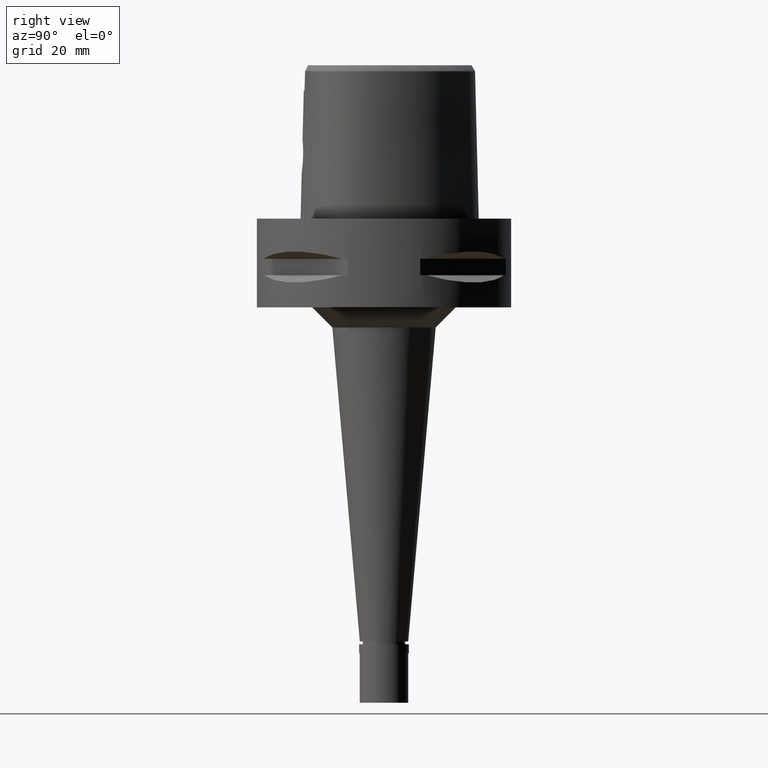
[diagram: clean part render]
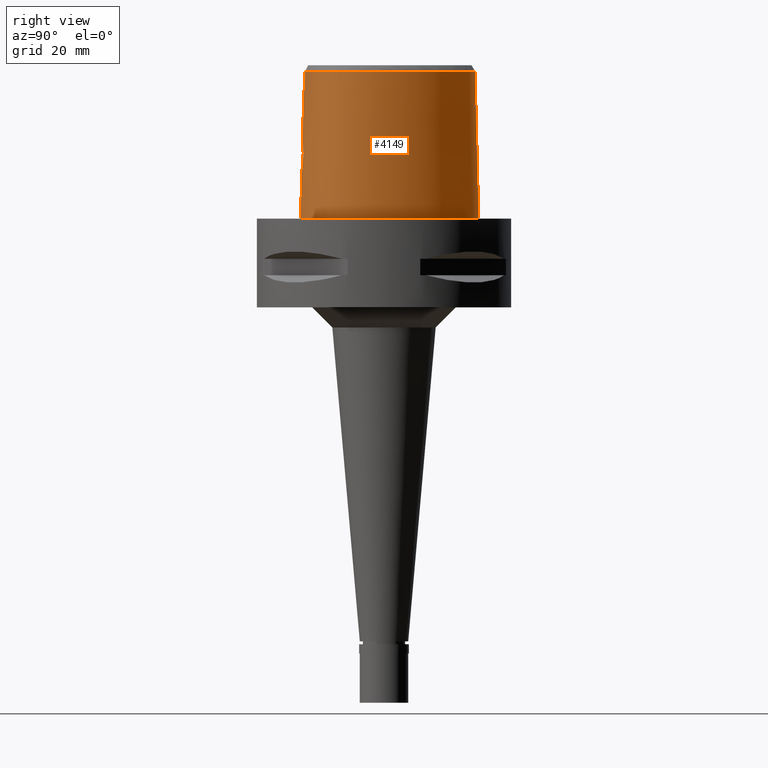
[diagram: same view with one face highlighted and labeled with its STEP entity id]
A machine part, right view. The second image highlights one B-rep face of the part: STEP entity #4149.
In plain terms, the highlighted face is a freeform B-spline surface patch.
Its self-contained STEP definition (entity closure, byte-faithful):
#12 = ORIENTED_EDGE ( 'NONE', *, *, #2161, .T. ) ;
#24 = CARTESIAN_POINT ( 'NONE',  ( 1.767192251246243018, -20.15197845540289734, 19.14519926632320690 ) ) ;
#47 = CARTESIAN_POINT ( 'NONE',  ( 2.758179676625399424, -20.25337897196573778, 12.53390918841465762 ) ) ;
#64 = ORIENTED_EDGE ( 'NONE', *, *, #3547, .F. ) ;
#71 = CARTESIAN_POINT ( 'NONE',  ( 1.836480365928000014, -19.76356488852000126, 37.25233258320000118 ) ) ;
#74 = CARTESIAN_POINT ( 'NONE',  ( 3.745459306425825474, -20.04797394566474011, 17.04080371184646836 ) ) ;
#96 = CARTESIAN_POINT ( 'NONE',  ( 1.583085234472323410, -20.15857747892415830, 19.22794739783360285 ) ) ;
#114 = CARTESIAN_POINT ( 'NONE',  ( 3.736696120837999402, -19.67778323291999953, 31.80000004972999861 ) ) ;
#119 = CARTESIAN_POINT ( 'NONE',  ( 2.772326413959959268, -20.10389738242821878, 18.45539022241195326 ) ) ;
#142 = ORIENTED_EDGE ( 'NONE', *, *, #475, .F. ) ;
#160 = CARTESIAN_POINT ( 'NONE',  ( 6.175998538949999173, -19.37631759675999987, 37.25233258320000118 ) ) ;
#165 = B_SPLINE_CURVE_WITH_KNOTS ( 'NONE', 3,
 ( #1835, #4555, #4475, #346 ),
 .UNSPECIFIED., .F., .F.,
 ( 4, 4 ),
 ( 0.0000000000000000000, 1.000000000000000000 ),
 .UNSPECIFIED. ) ;
#177 = CARTESIAN_POINT ( 'NONE',  ( 3.736696120837999402, -19.67778323291999953, 31.80000004972999861 ) ) ;
#183 = CARTESIAN_POINT ( 'NONE',  ( 14.36818021245999866, -16.67825708957000330, 24.59140909087000182 ) ) ;
#204 = CARTESIAN_POINT ( 'NONE',  ( 16.57726024685999633, -15.19304450070000101, 24.59140909087000182 ) ) ;
#225 = CARTESIAN_POINT ( 'NONE',  ( 19.40779762316999779, -12.64961922684999962, 11.93048559854000068 ) ) ;
#246 = CARTESIAN_POINT ( 'NONE',  ( 21.31039797601999908, -4.105938499110999729, 37.25233258320000118 ) ) ;
#271 = CARTESIAN_POINT ( 'NONE',  ( -1.012745931301000022E-12, -20.38876923348000147, 11.44999999999999929 ) ) ;
#273 = CARTESIAN_POINT ( 'NONE',  ( 10.55288400386000092, 18.94467580982000143, 11.93048559854000068 ) ) ;
#292 = CARTESIAN_POINT ( 'NONE',  ( -1.709898365991000259E-11, 22.56201468012000078, 36.52186680743999858 ) ) ;
#301 = CARTESIAN_POINT ( 'NONE',  ( 20.65947723820000093, -8.729764279915000813, 37.25233258320000118 ) ) ;
#320 = CARTESIAN_POINT ( 'NONE',  ( 21.99640702124999692, -0.2778990152892999999, -0.7304378937883000411 ) ) ;
#322 = ORIENTED_EDGE ( 'NONE', *, *, #4743, .T. ) ;
#346 = CARTESIAN_POINT ( 'NONE',  ( 2.041043315709000034E-08, -19.88004246002000031, 31.80000004972000127 ) ) ;
#349 = CARTESIAN_POINT ( 'NONE',  ( -0.7217521650948000023, 23.47150799231000207, -0.7304378937882000100 ) ) ;
#366 = CARTESIAN_POINT ( 'NONE',  ( 3.265869583376045604, -20.07528142228614954, 17.89964299958288763 ) ) ;
#381 = CARTESIAN_POINT ( 'NONE',  ( 4.706482814907000387E-11, 23.47499999999000053, 4.962696920073999769E-14 ) ) ;
#392 = CARTESIAN_POINT ( 'NONE',  ( 3.714384130523664229, -20.13065104887488488, 13.88538127571087344 ) ) ;
#393 = CARTESIAN_POINT ( 'NONE',  ( 10.91891095220961461, -18.03046396092870296, 36.52186680739934843 ) ) ;
#417 = CARTESIAN_POINT ( 'NONE',  ( 2.144427845703853031, -20.13626349860853892, 18.93810770243077357 ) ) ;
#421 = CARTESIAN_POINT ( 'NONE',  ( 14.40795643310065977, 15.64093753675004095, -2.265534882145512491E-06 ) ) ;
#439 = CARTESIAN_POINT ( 'NONE',  ( 11.23887130436999904, -18.91049776519999881, -0.7304378937883000411 ) ) ;
#442 = CARTESIAN_POINT ( 'NONE',  ( 1.856701250891908517, -20.14848423775754327, 19.09993988373629747 ) ) ;
#472 = CARTESIAN_POINT ( 'NONE',  ( 2.673904828756372254, -20.10928166633829051, 18.54472627324921064 ) ) ;
#475 = EDGE_CURVE ( 'NONE', #875, #2772, #692, .T. ) ;
#558 = CARTESIAN_POINT ( 'NONE',  ( 16.77374378063999671, -15.44292466803999808, 11.93048559854000068 ) ) ;
#564 = EDGE_CURVE ( 'NONE', #875, #1372, #165, .T. ) ;
#578 = CARTESIAN_POINT ( 'NONE',  ( 18.12052890019999651, -13.74516014105999950, 24.59140909087000182 ) ) ;
#579 = VERTEX_POINT ( 'NONE', #3037 ) ;
#584 = EDGE_CURVE ( 'NONE', #3042, #2666, #1082, .T. ) ;
#637 = B_SPLINE_CURVE_WITH_KNOTS ( 'NONE', 3,
 ( #292, #2903, #3731, #4062, #4882, #1447, #3680, #2978, #4862, #3636, #999, #2505, #1736, #1775, #1907, #3031, #2600, #2276, #1073, #393, #3760, #4932, #1553 ),
 .UNSPECIFIED., .F., .F.,
 ( 4, 1, 1, 1, 1, 1, 1, 1, 1, 1, 1, 1, 1, 1, 1, 1, 1, 1, 1, 1, 4 ),
 ( 0.0000000000000000000, 0.04382683003322158932, 0.08765366006602230697, 0.1314804900989283709, 0.1753073201318344210, 0.2629609801974359673, 0.3506146402631428738, 0.4382683003289548629, 0.5259219603945565202, 0.5697487904274624038, 0.6135756204602632602, 0.6574024504931693658, 0.6793158655095696830, 0.7012292805259701112, 0.7231426955423705394, 0.7450561105587708566, 0.7888829405916769621, 0.8327097706245829567, 0.8765366006573837021, 0.9641902607230801170, 1.000000000000000000 ),
 .UNSPECIFIED. ) ;
#639 = B_SPLINE_SURFACE_WITH_KNOTS ( 'NONE', 3, 3, ( 
 ( #2495, #2451, #3297, #4818 ),
 ( #944, #2140, #2541, #2912 ),
 ( #3604, #2478, #1009, #71 ),
 ( #1604, #1365, #4045, #160 ),
 ( #439, #4399, #4021, #2095 ),
 ( #3134, #4662, #183, #984 ),
 ( #2849, #558, #204, #1971 ),
 ( #1227, #1697, #578, #1719 ),
 ( #2116, #225, #3514, #1319 ),
 ( #3249, #3645, #4773, #1345 ),
 ( #1745, #3276, #4795, #2890 ),
 ( #1861, #3742, #4580, #301 ),
 ( #1411, #4146, #3011, #1807 ),
 ( #2209, #1136, #3715, #246 ),
 ( #320, #3398, #1483, #3374 ),
 ( #4846, #3691, #1085, #2940 ),
 ( #3419, #1112, #2964, #4168 ),
 ( #3767, #2986, #4945, #707 ),
 ( #1838, #273, #2235, #4916 ),
 ( #4558, #2634, #2163, #3350 ),
 ( #731, #4891, #2563, #4478 ),
 ( #2258, #4504, #3790, #1456 ),
 ( #4527, #1060, #1512, #4871 ),
 ( #1784, #3320, #3040, #1035 ),
 ( #349, #4096, #2610, #654 ) ),
 .UNSPECIFIED., .F., .F., .F.,
 ( 4, 1, 1, 1, 1, 1, 1, 1, 1, 1, 1, 1, 1, 1, 1, 1, 1, 1, 1, 1, 1, 1, 4 ),
 ( 4, 4 ),
 ( -0.008985960173583999039, 0.0000000000000000000, 0.08333333333341000349, 0.1666666666667000196, 0.2083333333333000081, 0.2500000000000000000, 0.2916666666666999919, 0.3125000000000000000, 0.3333333333333000081, 0.3541666666666000163, 0.3749999999998999689, 0.4166666666666000163, 0.4583333333332000326, 0.4999999999998999689, 0.5833333333331000015, 0.6666666666664999852, 0.7499999999998000488, 0.8333333333329999704, 0.8749999999997000177, 0.9166666666664000651, 0.9583333333329999704, 1.000000000000000000, 1.011710456763000199 ),
 ( -4.436129508872000012E-09, 1.000000226243000112 ),
 .UNSPECIFIED. ) ;
#654 = CARTESIAN_POINT ( 'NONE',  ( -0.6642815130213999275, 22.52377613248999921, 37.25233258320000118 ) ) ;
#692 = B_SPLINE_CURVE_WITH_KNOTS ( 'NONE', 3,
 ( #114, #2809, #1999, #3131 ),
 .UNSPECIFIED., .F., .F.,
 ( 4, 4 ),
 ( 0.0000000000000000000, 1.000000000000000000 ),
 .UNSPECIFIED. ) ;
#707 = CARTESIAN_POINT ( 'NONE',  ( 13.69241952728000022, 15.03666369403000047, 37.25233258320000118 ) ) ;
#712 = B_SPLINE_CURVE_WITH_KNOTS ( 'NONE', 3,
 ( #4669, #1129, #4574, #1557, #3890, #2710, #781, #2310, #4649, #4297, #4937, #2654, #1911, #1587, #4247, #2734, #421, #861, #3523, #3413, #752, #4270, #808 ),
 .UNSPECIFIED., .F., .F.,
 ( 4, 1, 1, 1, 1, 1, 1, 1, 1, 1, 1, 1, 1, 1, 1, 1, 1, 1, 1, 1, 4 ),
 ( 0.0000000000000000000, 0.08333333333341000349, 0.1666666666667000196, 0.2083333333333000081, 0.2500000000000000000, 0.2916666666666999919, 0.3125000000000000000, 0.3333333333333000081, 0.3541666666666000163, 0.3749999999998999689, 0.4166666666666000163, 0.4583333333332000326, 0.4999999999998999689, 0.5833333333331000015, 0.6666666666664999852, 0.7499999999998000488, 0.8333333333329999704, 0.8749999999997000177, 0.9166666666664000651, 0.9583333333329999704, 1.000000000000000000 ),
 .UNSPECIFIED. ) ;
#723 = LINE ( 'NONE', #2249, #2865 ) ;
#731 = CARTESIAN_POINT ( 'NONE',  ( 5.105252918102999971, 22.54305024739000274, -0.7304378937882000100 ) ) ;
#746 = CARTESIAN_POINT ( 'NONE',  ( 4.050037399383524139, -20.04599349312466927, 15.75361975466950781 ) ) ;
#752 = CARTESIAN_POINT ( 'NONE',  ( 2.564517738598203866, 23.29328130577168210, -2.265534882145512491E-06 ) ) ;
#773 = CARTESIAN_POINT ( 'NONE',  ( 3.850246712570873253, -20.10780614032470481, 14.21172176769504603 ) ) ;
#781 = CARTESIAN_POINT ( 'NONE',  ( 18.56841069267878197, -14.16937992189347817, -2.265534976416891388E-06 ) ) ;
#784 = ORIENTED_EDGE ( 'NONE', *, *, #1029, .T. ) ;
#804 = CARTESIAN_POINT ( 'NONE',  ( 2.880386059682973343, -20.09771851976562829, 18.34709984349741418 ) ) ;
#808 = CARTESIAN_POINT ( 'NONE',  ( 4.706482814907000387E-11, 23.47499999999000053, 4.962696920073999769E-14 ) ) ;
#827 = CARTESIAN_POINT ( 'NONE',  ( 2.915545606160534930, -20.09570297646324377, 18.31119129212262209 ) ) ;
#855 = CARTESIAN_POINT ( 'NONE',  ( 3.559803832315476146, -20.05788146350431234, 17.44950363749580546 ) ) ;
#861 = CARTESIAN_POINT ( 'NONE',  ( 10.74572894720616922, 19.17433598110774895, -2.265534976416891388E-06 ) ) ;
#875 = VERTEX_POINT ( 'NONE', #177 ) ;
#885 = CARTESIAN_POINT ( 'NONE',  ( 0.0000000000000000000, -20.18628283968999781, 19.55000000000000071 ) ) ;
#944 = CARTESIAN_POINT ( 'NONE',  ( -0.4561077450384999898, -20.69106756156000060, -0.7304378937883000411 ) ) ;
#984 = CARTESIAN_POINT ( 'NONE',  ( 14.21104783177000108, -16.40237676687000246, 37.25233258320000118 ) ) ;
#999 = CARTESIAN_POINT ( 'NONE',  ( 21.32871516739689000, -4.105831245034515575, 36.52186680739934843 ) ) ;
#1009 = CARTESIAN_POINT ( 'NONE',  ( 1.853272111804000088, -20.08023965926000187, 24.59140909087000182 ) ) ;
#1027 = CARTESIAN_POINT ( 'NONE',  ( 1.222756221968838375, -20.36284569854003124, 11.63840396453747239 ) ) ;
#1029 = EDGE_CURVE ( 'NONE', #1116, #2772, #637, .T. ) ;
#1035 = CARTESIAN_POINT ( 'NONE',  ( -0.4431573285195999912, 22.53713843973000053, 37.25233258320000118 ) ) ;
#1060 = CARTESIAN_POINT ( 'NONE',  ( 0.5990981970859000638, 23.20165460204999874, 11.93048559854000068 ) ) ;
#1073 = CARTESIAN_POINT ( 'NONE',  ( 14.22011350746370439, -16.41829354687986964, 36.52186680739934843 ) ) ;
#1082 = LINE ( 'NONE', #271, #2053 ) ;
#1085 = CARTESIAN_POINT ( 'NONE',  ( 20.16779718007999733, 4.447573587376000503, 24.59140909087000182 ) ) ;
#1112 = CARTESIAN_POINT ( 'NONE',  ( 17.80867300997000058, 10.28184204457000028, 11.93048559854000068 ) ) ;
#1116 = VERTEX_POINT ( 'NONE', #4243 ) ;
#1125 = CARTESIAN_POINT ( 'NONE',  ( 3.210108431849711064, -20.20255916619499814, 13.02975361490151052 ) ) ;
#1129 = CARTESIAN_POINT ( 'NONE',  ( 2.113823676433260523, -20.67500005663059426, -2.265534886968206808E-06 ) ) ;
#1136 = CARTESIAN_POINT ( 'NONE',  ( 21.94536970584000102, -4.102220499715000024, 11.93048559854000068 ) ) ;
#1151 = CARTESIAN_POINT ( 'NONE',  ( 3.289399613305457937, -20.19244639184436707, 13.13636645579085460 ) ) ;
#1178 = CARTESIAN_POINT ( 'NONE',  ( 4.026067555606399395, -20.04243146964170208, 16.01312629722099601 ) ) ;
#1207 = CARTESIAN_POINT ( 'NONE',  ( 3.860403433738065271, -20.04330035600996140, 16.72651338064445525 ) ) ;
#1227 = CARTESIAN_POINT ( 'NONE',  ( 18.58171406977000117, -14.18198046920000088, -0.7304378937883000411 ) ) ;
#1229 = CARTESIAN_POINT ( 'NONE',  ( 3.828814954410808991, -20.04436409866677593, 16.82317999465184499 ) ) ;
#1259 = EDGE_LOOP ( 'NONE', ( #64, #784, #142, #3152, #12, #1676, #3232, #322 ) ) ;
#1319 = CARTESIAN_POINT ( 'NONE',  ( 18.89485256829999926, -12.27684358077000049, 37.25233258320000118 ) ) ;
#1345 = CARTESIAN_POINT ( 'NONE',  ( 19.54161151104000282, -11.28235466453000058, 37.25233258320000118 ) ) ;
#1363 = B_SPLINE_CURVE_WITH_KNOTS ( 'NONE', 3,
 ( #4085, #1797, #1377, #1400, #3779, #1027, #1774, #3309, #4831, #2924, #4465, #3704, #4860, #1426, #2953, #4592, #3110, #2728, #1501, #47, #4644, #1551, #4930, #3057, #3915, #1526, #1607, #1125, #1151, #1974, #3838, #1579, #2705, #3030, #2329, #392, #4292, #773, #3518, #4570, #2649, #3486, #4242, #4211, #3136, #1949, #746, #1178, #4184, #4665, #1207, #1229, #4266, #1906, #2274, #2755, #74, #1928, #855, #3806, #366, #2381, #3435, #3082, #3864, #827, #4617, #804, #2353, #119, #472, #3886, #2004, #2674, #2305, #417, #3458, #442, #24, #3539, #2785, #96, #1633, #3161, #885 ),
 .UNSPECIFIED., .F., .F.,
 ( 4, 2, 2, 1, 1, 1, 2, 2, 2, 2, 2, 1, 1, 2, 2, 2, 2, 2, 2, 1, 2, 2, 2, 2, 1, 2, 2, 2, 2, 1, 1, 1, 2, 2, 2, 2, 2, 1, 1, 2, 2, 2, 2, 2, 2, 1, 2, 2, 4 ),
 ( 0.0000000000000000000, 0.06249999999999159006, 0.09374999999998738509, 0.1093749999999852063, 0.1171874999999840683, 0.1210937499999835409, 0.1230468749999833744, 0.1249999999999832079, 0.1874999999999821532, 0.2187499999999815981, 0.2343749999999812927, 0.2421874999999812372, 0.2460937499999811540, 0.2480468749999810985, 0.2499999999999810707, 0.2812499999999822364, 0.2968749999999828471, 0.3124999999999834577, 0.3437499999999846789, 0.3593749999999852340, 0.3671874999999855671, 0.3749999999999859002, 0.4374999999999890643, 0.4687499999999906741, 0.4843749999999916733, 0.4921874999999921729, 0.4999999999999926725, 0.5624999999999952260, 0.5937499999999968914, 0.6093749999999981126, 0.6171874999999984457, 0.6210937499999982236, 0.6230468749999984457, 0.6249999999999985567, 0.6874999999999963363, 0.7187499999999952260, 0.7343749999999946709, 0.7421874999999940048, 0.7460937499999937828, 0.7480468749999937828, 0.7499999999999938938, 0.7812499999999944489, 0.7968749999999948930, 0.8124999999999953371, 0.8437499999999958922, 0.8593749999999961142, 0.8671874999999964473, 0.8749999999999966693, 1.000000000000000000 ),
 .UNSPECIFIED. ) ;
#1365 = CARTESIAN_POINT ( 'NONE',  ( 6.288476564748999742, -20.00290563557000212, 11.93048559854000068 ) ) ;
#1372 = VERTEX_POINT ( 'NONE', #1421 ) ;
#1377 = CARTESIAN_POINT ( 'NONE',  ( 0.5100579658819901496, -20.38531276215466548, 11.47358267918792585 ) ) ;
#1400 = CARTESIAN_POINT ( 'NONE',  ( 0.8988479711771356628, -20.37494334817868236, 11.54879813003884514 ) ) ;
#1411 = CARTESIAN_POINT ( 'NONE',  ( 22.07548129643999957, -6.850245536250000100, -0.7304378937883000411 ) ) ;
#1421 = CARTESIAN_POINT ( 'NONE',  ( 2.041043315709000034E-08, -19.88004246002000031, 31.80000004972000127 ) ) ;
#1426 = CARTESIAN_POINT ( 'NONE',  ( 1.946611601999839625, -20.32311006286640165, 11.93862046598874826 ) ) ;
#1444 = CARTESIAN_POINT ( 'NONE',  ( -8.162744946017001396E-12, -20.67499999999999716, 5.255055649891999731E-14 ) ) ;
#1447 = CARTESIAN_POINT ( 'NONE',  ( 10.15538781007014535, 18.47129526702875779, 36.52186680739934843 ) ) ;
#1456 = CARTESIAN_POINT ( 'NONE',  ( 2.373090250903999721, 22.37624315189999891, 37.25233258320000118 ) ) ;
#1483 = CARTESIAN_POINT ( 'NONE',  ( 21.36961485059999788, -0.3886498185917999781, 24.59140909087000182 ) ) ;
#1501 = CARTESIAN_POINT ( 'NONE',  ( 2.714817435292671721, -20.25772213911182718, 12.49437854280446025 ) ) ;
#1512 = CARTESIAN_POINT ( 'NONE',  ( 0.5826623198529999881, 22.88447422120000141, 24.59140909087000182 ) ) ;
#1526 = CARTESIAN_POINT ( 'NONE',  ( 3.042491796688632455, -20.22274507510633867, 12.82354767343242408 ) ) ;
#1551 = CARTESIAN_POINT ( 'NONE',  ( 2.830175095663558071, -20.24590160278924245, 12.60298252333990554 ) ) ;
#1553 = CARTESIAN_POINT ( 'NONE',  ( 3.637738219117000238, -19.56971420299000286, 36.52185956443999970 ) ) ;
#1557 = CARTESIAN_POINT ( 'NONE',  ( 11.23259758673791708, -18.89324224101567040, -2.265534976416891388E-06 ) ) ;
#1579 = CARTESIAN_POINT ( 'NONE',  ( 3.504989208434200698, -20.16277707621807380, 13.46647361527067588 ) ) ;
#1587 = CARTESIAN_POINT ( 'NONE',  ( 21.97832653394497271, -0.2810937400911246997, -2.265534976416891388E-06 ) ) ;
#1604 = CARTESIAN_POINT ( 'NONE',  ( 6.344715577648000426, -20.31619965496999924, -0.7304378937883000411 ) ) ;
#1607 = CARTESIAN_POINT ( 'NONE',  ( 3.169150985203781357, -20.20760989054317491, 12.97742286930437672 ) ) ;
#1633 = CARTESIAN_POINT ( 'NONE',  ( 1.027682876512344468, -20.17741712424492917, 19.45809765211563658 ) ) ;
#1676 = ORIENTED_EDGE ( 'NONE', *, *, #3553, .F. ) ;
#1697 = CARTESIAN_POINT ( 'NONE',  ( 18.35112148497999840, -13.96357030513000019, 11.93048559854000068 ) ) ;
#1713 = CARTESIAN_POINT ( 'NONE',  ( 2.041043315709000034E-08, -19.88004246002000031, 31.80000004972000127 ) ) ;
#1719 = CARTESIAN_POINT ( 'NONE',  ( 17.88993631540999729, -13.52674997699000059, 37.25233258320000118 ) ) ;
#1736 = CARTESIAN_POINT ( 'NONE',  ( 20.67704204633654541, -8.734985285294115442, 36.52186680739934843 ) ) ;
#1745 = CARTESIAN_POINT ( 'NONE',  ( 20.94844326356000153, -10.61175397216999983, -0.7304378937883000411 ) ) ;
#1774 = CARTESIAN_POINT ( 'NONE',  ( 1.319600680391938230, -20.35863312411228776, 11.66994494017245998 ) ) ;
#1775 = CARTESIAN_POINT ( 'NONE',  ( 20.09619608768293730, -10.23243839430120694, 36.52186680739934843 ) ) ;
#1784 = CARTESIAN_POINT ( 'NONE',  ( -0.4812391256253999994, 23.48607176822000042, -0.7304378937882000100 ) ) ;
#1797 = CARTESIAN_POINT ( 'NONE',  ( 0.2519697368795507653, -20.38876923347999792, 11.44999999999999751 ) ) ;
#1807 = CARTESIAN_POINT ( 'NONE',  ( 21.13154852918000159, -6.714587026236000789, 37.25233258320000118 ) ) ;
#1835 = CARTESIAN_POINT ( 'NONE',  ( 3.736696120837999402, -19.67778323291999953, 31.80000004972999861 ) ) ;
#1838 = CARTESIAN_POINT ( 'NONE',  ( 10.75753574160999904, 19.18839676163999997, -0.7304378937883000411 ) ) ;
#1861 = CARTESIAN_POINT ( 'NONE',  ( 21.57281239778000170, -9.001246196717000103, -0.7304378937882000100 ) ) ;
#1906 = CARTESIAN_POINT ( 'NONE',  ( 3.765593220700946375, -20.04704214534181261, 16.99108095766529658 ) ) ;
#1907 = CARTESIAN_POINT ( 'NONE',  ( 19.55745538000991601, -11.29150212657915908, 36.52186680739934843 ) ) ;
#1911 = CARTESIAN_POINT ( 'NONE',  ( 22.24453913536373761, -4.100468749666929646, -2.265534882145512491E-06 ) ) ;
#1928 = CARTESIAN_POINT ( 'NONE',  ( 3.664274183413967378, -20.05181531545131790, 17.23726368442735790 ) ) ;
#1949 = CARTESIAN_POINT ( 'NONE',  ( 4.049995275655164484, -20.05320010482692439, 15.46762644421692734 ) ) ;
#1955 = CARTESIAN_POINT ( 'NONE',  ( -1.012745931301000022E-12, -20.38876923348000147, 11.44999999999999929 ) ) ;
#1971 = CARTESIAN_POINT ( 'NONE',  ( 16.38077671307999950, -14.94316433336999950, 37.25233258320000118 ) ) ;
#1974 = CARTESIAN_POINT ( 'NONE',  ( 3.328551379741157223, -20.18727222456293902, 13.19186960084076254 ) ) ;
#1999 = CARTESIAN_POINT ( 'NONE',  ( 3.671249151389730514, -19.60525176641679579, 34.94790639287000289 ) ) ;
#2004 = CARTESIAN_POINT ( 'NONE',  ( 2.467729343593618285, -20.12009802658510793, 18.71204267792805709 ) ) ;
#2053 = VECTOR ( 'NONE', #4143, 1000.000000000000114 ) ;
#2072 = FACE_OUTER_BOUND ( 'NONE', #1259, .T. ) ;
#2095 = CARTESIAN_POINT ( 'NONE',  ( 10.91263697564000168, -18.01320772454999997, 37.25233258320000118 ) ) ;
#2116 = CARTESIAN_POINT ( 'NONE',  ( 19.66427015060000016, -12.83600704989000008, -0.7304378937882000100 ) ) ;
#2140 = CARTESIAN_POINT ( 'NONE',  ( -0.4520500659869000626, -20.37458439137999733, 11.93048559854000068 ) ) ;
#2161 = EDGE_CURVE ( 'NONE', #1372, #579, #4172, .T. ) ;
#2163 = CARTESIAN_POINT ( 'NONE',  ( 7.259695347568000834, 20.78233549280999881, 24.59140909087000182 ) ) ;
#2209 = CARTESIAN_POINT ( 'NONE',  ( 22.26285557075999932, -4.100361500017000616, -0.7304378937882000100 ) ) ;
#2235 = CARTESIAN_POINT ( 'NONE',  ( 10.34823226610999924, 18.70095485799000201, 24.59140909087000182 ) ) ;
#2249 = CARTESIAN_POINT ( 'NONE',  ( -1.709898365991000259E-11, 22.56201468012000078, 36.52186680743999858 ) ) ;
#2258 = CARTESIAN_POINT ( 'NONE',  ( 2.568271206878999902, 23.31126238918000126, -0.7304378937882000100 ) ) ;
#2274 = CARTESIAN_POINT ( 'NONE',  ( 3.755991642143216236, -20.04748304465435638, 17.01495889863301869 ) ) ;
#2276 = CARTESIAN_POINT ( 'NONE',  ( 16.39211273426531079, -14.95758104715842229, 36.52186680739934843 ) ) ;
#2305 = CARTESIAN_POINT ( 'NONE',  ( 2.305334229540737745, -20.12831948498808288, 18.83048013503215401 ) ) ;
#2310 = CARTESIAN_POINT ( 'NONE',  ( 19.64947370452585673, -12.82525393960515636, -2.265534882145512491E-06 ) ) ;
#2329 = CARTESIAN_POINT ( 'NONE',  ( 3.686910441657777593, -20.13511169296129211, 13.82359477180905394 ) ) ;
#2353 = CARTESIAN_POINT ( 'NONE',  ( 2.871987183427572088, -20.09819914941969188, 18.35556622516840619 ) ) ;
#2381 = CARTESIAN_POINT ( 'NONE',  ( 3.128678969648640784, -20.08334280844311337, 18.07279819848842806 ) ) ;
#2451 = CARTESIAN_POINT ( 'NONE',  ( -0.6779734120868000646, -20.37023475454000021, 11.93048559854000068 ) ) ;
#2478 = CARTESIAN_POINT ( 'NONE',  ( 1.870063857679000074, -20.39691443000999982, 11.93048559854000068 ) ) ;
#2495 = CARTESIAN_POINT ( 'NONE',  ( -0.6840631437254000025, -20.68668116926000167, -0.7304378937883000411 ) ) ;
#2505 = CARTESIAN_POINT ( 'NONE',  ( 21.14970177530908657, -6.717195943319112850, 36.52186680739934843 ) ) ;
#2541 = CARTESIAN_POINT ( 'NONE',  ( -0.4479923869351999932, -20.05810122119999761, 24.59140909087000182 ) ) ;
#2563 = CARTESIAN_POINT ( 'NONE',  ( 4.868968356362000094, 21.95285521302999854, 24.59140909087000182 ) ) ;
#2600 = CARTESIAN_POINT ( 'NONE',  ( 17.90324024157655458, -13.53935104436370196, 36.52186680739934843 ) ) ;
#2610 = CARTESIAN_POINT ( 'NONE',  ( -0.6834383970459000368, 22.83968675243000135, 24.59140909087000182 ) ) ;
#2634 = CARTESIAN_POINT ( 'NONE',  ( 7.420053095219000028, 21.05635738017999969, 11.93048559854000068 ) ) ;
#2649 = CARTESIAN_POINT ( 'NONE',  ( 4.020738798819333049, -20.06858537622277083, 14.99755720161256356 ) ) ;
#2654 = CARTESIAN_POINT ( 'NONE',  ( 22.05732879952581982, -6.847636726841270338, -2.265534976416891388E-06 ) ) ;
#2666 = VERTEX_POINT ( 'NONE', #1444 ) ;
#2674 = CARTESIAN_POINT ( 'NONE',  ( 2.361140904825586251, -20.12552479265222516, 18.79118822093536423 ) ) ;
#2705 = CARTESIAN_POINT ( 'NONE',  ( 3.599362307491632773, -20.14875877779060787, 13.64217581387093148 ) ) ;
#2710 = CARTESIAN_POINT ( 'NONE',  ( 16.95889176109129082, -15.67838871659295741, -2.265534882145512491E-06 ) ) ;
#2728 = CARTESIAN_POINT ( 'NONE',  ( 2.628027080905380064, -20.26624238139265799, 12.41747670475611720 ) ) ;
#2734 = CARTESIAN_POINT ( 'NONE',  ( 18.06826693456605426, 10.43171877846808471, -2.265534882145512491E-06 ) ) ;
#2755 = CARTESIAN_POINT ( 'NONE',  ( 3.749536200694275845, -20.04778253193092752, 17.03086640830616361 ) ) ;
#2772 = VERTEX_POINT ( 'NONE', #3836 ) ;
#2785 = CARTESIAN_POINT ( 'NONE',  ( 1.613182323477183822, -20.15753140428502377, 19.21500890073020429 ) ) ;
#2809 = CARTESIAN_POINT ( 'NONE',  ( 3.704239288984441103, -19.64128042389065598, 33.37395322129999897 ) ) ;
#2849 = CARTESIAN_POINT ( 'NONE',  ( 16.97022731441999710, -15.69280483537999871, -0.7304378937882000100 ) ) ;
#2865 = VECTOR ( 'NONE', #4432, 999.9999999999998863 ) ;
#2890 = CARTESIAN_POINT ( 'NONE',  ( 20.07948470835999899, -10.22500054447999851, 37.25233258320000118 ) ) ;
#2891 = VERTEX_POINT ( 'NONE', #381 ) ;
#2903 = CARTESIAN_POINT ( 'NONE',  ( 0.7901461619515897095, 22.56201467849203368, 36.52186680739934843 ) ) ;
#2912 = CARTESIAN_POINT ( 'NONE',  ( -0.4439347078834999794, -19.74161805102000145, 37.25233258320000118 ) ) ;
#2924 = CARTESIAN_POINT ( 'NONE',  ( 1.511996643079264624, -20.34900293593731746, 11.74281483623034816 ) ) ;
#2940 = CARTESIAN_POINT ( 'NONE',  ( 19.86834399301999809, 4.339653553154000143, 37.25233258320000118 ) ) ;
#2953 = CARTESIAN_POINT ( 'NONE',  ( 2.282207029748997140, -20.29700151028863786, 12.15162930637258576 ) ) ;
#2964 = CARTESIAN_POINT ( 'NONE',  ( 17.53318563210000036, 10.12278921431000001, 24.59140909087000182 ) ) ;
#2978 = CARTESIAN_POINT ( 'NONE',  ( 17.27359236348991445, 9.972912859139483999, 36.52186680739934843 ) ) ;
#2986 = CARTESIAN_POINT ( 'NONE',  ( 14.17879752518000025, 15.44741190200999981, 11.93048559854000068 ) ) ;
#3011 = CARTESIAN_POINT ( 'NONE',  ( 21.44619278493000181, -6.759806529573999079, 24.59140909087000182 ) ) ;
#3030 = CARTESIAN_POINT ( 'NONE',  ( 3.644654988697020315, -20.14185568960492390, 13.73169098995773751 ) ) ;
#3031 = CARTESIAN_POINT ( 'NONE',  ( 18.90964962507404579, -12.28759713487204763, 36.52186680739934843 ) ) ;
#3037 = CARTESIAN_POINT ( 'NONE',  ( 0.0000000000000000000, -20.18628283968999781, 19.55000000000000071 ) ) ;
#3040 = CARTESIAN_POINT ( 'NONE',  ( -0.4558512608881999939, 22.85344954922999960, 24.59140909087000182 ) ) ;
#3042 = VERTEX_POINT ( 'NONE', #1955 ) ;
#3057 = CARTESIAN_POINT ( 'NONE',  ( 2.853007646190108382, -20.24348516854157154, 12.62547111175886627 ) ) ;
#3082 = CARTESIAN_POINT ( 'NONE',  ( 3.003234361610529479, -20.09064592609345823, 18.21745801851047020 ) ) ;
#3110 = CARTESIAN_POINT ( 'NONE',  ( 2.570081009086094159, -20.27170108689805161, 12.36908902939508081 ) ) ;
#3131 = CARTESIAN_POINT ( 'NONE',  ( 3.637738219117000238, -19.56971420299000286, 36.52185956443999970 ) ) ;
#3134 = CARTESIAN_POINT ( 'NONE',  ( 14.68244497385000003, -17.23001773496000411, -0.7304378937883000411 ) ) ;
#3136 = CARTESIAN_POINT ( 'NONE',  ( 4.049643110176808669, -20.05399160878188525, 15.43795828973410877 ) ) ;
#3152 = ORIENTED_EDGE ( 'NONE', *, *, #564, .T. ) ;
#3161 = CARTESIAN_POINT ( 'NONE',  ( 0.4948470747693012872, -20.18628283969000847, 19.54999999999999716 ) ) ;
#3232 = ORIENTED_EDGE ( 'NONE', *, *, #584, .T. ) ;
#3249 = CARTESIAN_POINT ( 'NONE',  ( 20.36546124977000005, -11.75800453475999952, -0.7304378937882000100 ) ) ;
#3276 = CARTESIAN_POINT ( 'NONE',  ( 20.65879041183000098, -10.48283616293999998, 11.93048559854000068 ) ) ;
#3297 = CARTESIAN_POINT ( 'NONE',  ( -0.6718836804482999359, -20.05378833981999875, 24.59140909087000182 ) ) ;
#3309 = CARTESIAN_POINT ( 'NONE',  ( 1.432005274345889534, -20.35315137661976337, 11.71134280122775451 ) ) ;
#3320 = CARTESIAN_POINT ( 'NONE',  ( -0.4685451932567999966, 23.16976065872000135, 11.93048559854000068 ) ) ;
#3350 = CARTESIAN_POINT ( 'NONE',  ( 7.099337599917999952, 20.50831360545000237, 37.25233258320000118 ) ) ;
#3374 = CARTESIAN_POINT ( 'NONE',  ( 21.05621876527999703, -0.4440252202430000072, 37.25233258320000118 ) ) ;
#3398 = CARTESIAN_POINT ( 'NONE',  ( 21.68301093592999962, -0.3332744169406000045, 11.93048559854000068 ) ) ;
#3413 = CARTESIAN_POINT ( 'NONE',  ( 5.098437038423855761, 22.52602544343411495, -2.265534882145512491E-06 ) ) ;
#3419 = CARTESIAN_POINT ( 'NONE',  ( 18.08416038783999724, 10.44089487482999878, -0.7304378937882000100 ) ) ;
#3435 = CARTESIAN_POINT ( 'NONE',  ( 3.080229322172606032, -20.08617626112532051, 18.13071590547675171 ) ) ;
#3458 = CARTESIAN_POINT ( 'NONE',  ( 2.032175996660516848, -20.14130468680091113, 19.00576489869365915 ) ) ;
#3486 = CARTESIAN_POINT ( 'NONE',  ( 4.038482248007222886, -20.06165359963147665, 15.18817722016155791 ) ) ;
#3514 = CARTESIAN_POINT ( 'NONE',  ( 19.15132509573999897, -12.46323140380999916, 24.59140909087000182 ) ) ;
#3518 = CARTESIAN_POINT ( 'NONE',  ( 3.927790621349016131, -20.09243382074337703, 14.47756111163853276 ) ) ;
#3523 = CARTESIAN_POINT ( 'NONE',  ( 7.571159463045008309, 21.31457036153323159, -2.265534882145512491E-06 ) ) ;
#3539 = CARTESIAN_POINT ( 'NONE',  ( 1.675120599116782349, -20.15532933629876666, 19.18749499249809176 ) ) ;
#3547 = EDGE_CURVE ( 'NONE', #1116, #2891, #723, .T. ) ;
#3553 = EDGE_CURVE ( 'NONE', #3042, #579, #1363, .T. ) ;
#3604 = CARTESIAN_POINT ( 'NONE',  ( 1.886855603554999927, -20.71358920075000043, -0.7304378937882000100 ) ) ;
#3636 = CARTESIAN_POINT ( 'NONE',  ( 21.07429999882784699, -0.4408303635840903900, 36.52186680739934843 ) ) ;
#3638 = CARTESIAN_POINT ( 'NONE',  ( 6.820786351233307322E-09, -19.98212988583257754, 27.71666688228241426 ) ) ;
#3645 = CARTESIAN_POINT ( 'NONE',  ( 20.09084467019999920, -11.59945457801999957, 11.93048559854000068 ) ) ;
#3680 = CARTESIAN_POINT ( 'NONE',  ( 13.70645019738805281, 15.04851265230632862, 36.52186680739934843 ) ) ;
#3691 = CARTESIAN_POINT ( 'NONE',  ( 20.46725036714000012, 4.555493621597999976, 11.93048559854000068 ) ) ;
#3704 = CARTESIAN_POINT ( 'NONE',  ( 1.537967824492122881, -20.34761404973959031, 11.75337532982849176 ) ) ;
#3715 = CARTESIAN_POINT ( 'NONE',  ( 21.62788384093000005, -4.104079499412999432, 24.59140909087000182 ) ) ;
#3731 = CARTESIAN_POINT ( 'NONE',  ( 2.376843874103556686, 22.39422497744769203, 36.52186680739934843 ) ) ;
#3742 = CARTESIAN_POINT ( 'NONE',  ( 21.26836734458999700, -8.910752224449998593, 11.93048559854000068 ) ) ;
#3760 = CARTESIAN_POINT ( 'NONE',  ( 7.300578979383034905, -19.07170738130837861, 36.52186680739934843 ) ) ;
#3767 = CARTESIAN_POINT ( 'NONE',  ( 14.42198652413999937, 15.65278600599999770, -0.7304378937882000100 ) ) ;
#3779 = CARTESIAN_POINT ( 'NONE',  ( 1.028701314432276970, -20.37062275902201947, 11.58049741886306805 ) ) ;
#3790 = CARTESIAN_POINT ( 'NONE',  ( 2.438150569562000047, 22.68791623099000176, 24.59140909087000182 ) ) ;
#3806 = CARTESIAN_POINT ( 'NONE',  ( 3.346444325162836186, -20.07049246070102910, 17.78503332970873529 ) ) ;
#3836 = CARTESIAN_POINT ( 'NONE',  ( 3.637738219117000238, -19.56971420299000286, 36.52185956443999970 ) ) ;
#3838 = CARTESIAN_POINT ( 'NONE',  ( 3.437023659522663532, -20.17240543791114860, 13.35378256640188965 ) ) ;
#3864 = CARTESIAN_POINT ( 'NONE',  ( 2.963657114682588745, -20.09293563006372096, 18.26079471622312056 ) ) ;
#3886 = CARTESIAN_POINT ( 'NONE',  ( 2.520050460812063076, -20.11738995382118489, 18.67115940202099011 ) ) ;
#3890 = CARTESIAN_POINT ( 'NONE',  ( 14.67337967231193296, -17.21410161186289756, -2.265534976416891388E-06 ) ) ;
#3915 = CARTESIAN_POINT ( 'NONE',  ( 2.953000302322064563, -20.23281254683993424, 12.72512295699297091 ) ) ;
#4014 = CARTESIAN_POINT ( 'NONE',  ( 0.0000000000000000000, -20.18628283968999781, 19.55000000000000071 ) ) ;
#4021 = CARTESIAN_POINT ( 'NONE',  ( 11.02138175187999991, -18.31230440476999988, 24.59140909087000182 ) ) ;
#4045 = CARTESIAN_POINT ( 'NONE',  ( 6.232237551849000745, -19.68961161616000055, 24.59140909087000182 ) ) ;
#4062 = CARTESIAN_POINT ( 'NONE',  ( 4.757642236485537524, 21.67478320247709078, 36.52186680739934843 ) ) ;
#4085 = CARTESIAN_POINT ( 'NONE',  ( -1.012745931301000022E-12, -20.38876923348000147, 11.44999999999999929 ) ) ;
#4096 = CARTESIAN_POINT ( 'NONE',  ( -0.7025952810703000040, 23.15559737236999993, 11.93048559854000068 ) ) ;
#4143 = DIRECTION ( 'NONE',  ( -6.242590381494819387E-13, -0.02499051295389925070, -0.9996876883618708298 ) ) ;
#4146 = CARTESIAN_POINT ( 'NONE',  ( 21.76083704069000291, -6.805026032912000034, 11.93048559854000068 ) ) ;
#4149 = ADVANCED_FACE ( 'NONE', ( #2072 ), #639, .T. ) ;
#4168 = CARTESIAN_POINT ( 'NONE',  ( 17.25769825423999748, 9.963736384048999639, 37.25233258320000118 ) ) ;
#4172 = B_SPLINE_CURVE_WITH_KNOTS ( 'NONE', 3,
 ( #1713, #3638, #4349, #4014 ),
 .UNSPECIFIED., .F., .F.,
 ( 4, 4 ),
 ( 0.0000000000000000000, 1.000000000000000000 ),
 .UNSPECIFIED. ) ;
#4184 = CARTESIAN_POINT ( 'NONE',  ( 3.950323019400650004, -20.04135421479582391, 16.40274729697457090 ) ) ;
#4211 = CARTESIAN_POINT ( 'NONE',  ( 4.048221369819508197, -20.05572751809215148, 15.37605551826769101 ) ) ;
#4242 = CARTESIAN_POINT ( 'NONE',  ( 4.045013207771217978, -20.05847505277924370, 15.28275217491521509 ) ) ;
#4243 = CARTESIAN_POINT ( 'NONE',  ( -1.709898365991000259E-11, 22.56201468012000078, 36.52186680743999858 ) ) ;
#4247 = CARTESIAN_POINT ( 'NONE',  ( 20.74942746238602354, 4.657187519310618917, -2.265534882145512491E-06 ) ) ;
#4266 = CARTESIAN_POINT ( 'NONE',  ( 3.787426346252614984, -20.04607170149531470, 16.93525315949890597 ) ) ;
#4270 = CARTESIAN_POINT ( 'NONE',  ( 0.8548392463216736292, 23.47500005663886569, -2.265534964801604392E-06 ) ) ;
#4292 = CARTESIAN_POINT ( 'NONE',  ( 3.727121516744432039, -20.12854809717472904, 13.91496385434345129 ) ) ;
#4297 = CARTESIAN_POINT ( 'NONE',  ( 20.93173257394427722, -10.60431642932132767, -2.265534976416891388E-06 ) ) ;
#4349 = CARTESIAN_POINT ( 'NONE',  ( 6.840738706128241285E-09, -20.08420636276145999, 23.63333344114117551 ) ) ;
#4399 = CARTESIAN_POINT ( 'NONE',  ( 11.13012652813000081, -18.61140108498999979, 11.93048559854000068 ) ) ;
#4432 = DIRECTION ( 'NONE',  ( 1.756311446018959289E-12, 0.02499051290962944413, -0.9996876883629776112 ) ) ;
#4465 = CARTESIAN_POINT ( 'NONE',  ( 1.527965580146168900, -20.34815231994710061, 11.74928068373247747 ) ) ;
#4475 = CARTESIAN_POINT ( 'NONE',  ( 1.251533272182152157, -19.88005341395406589, 31.80000012137772103 ) ) ;
#4478 = CARTESIAN_POINT ( 'NONE',  ( 4.750826075492000200, 21.65775769585000177, 37.25233258320000118 ) ) ;
#4504 = CARTESIAN_POINT ( 'NONE',  ( 2.503210888220000374, 22.99958931008000107, 11.93048559854000068 ) ) ;
#4527 = CARTESIAN_POINT ( 'NONE',  ( 0.6155340743186999974, 23.51883498291000052, -0.7304378937883000411 ) ) ;
#4555 = CARTESIAN_POINT ( 'NONE',  ( 2.503154195451717801, -19.81241979350958360, 31.80000012137772103 ) ) ;
#4558 = CARTESIAN_POINT ( 'NONE',  ( 7.580410842869000021, 21.33037926753999969, -0.7304378937882000100 ) ) ;
#4570 = CARTESIAN_POINT ( 'NONE',  ( 4.002664568992836180, -20.07397280446609145, 14.86850854358338303 ) ) ;
#4574 = CARTESIAN_POINT ( 'NONE',  ( 6.341471029274799776, -20.29812505606519224, -2.265534976416891388E-06 ) ) ;
#4580 = CARTESIAN_POINT ( 'NONE',  ( 20.96392229139999941, -8.820258252183000636, 24.59140909087000182 ) ) ;
#4592 = CARTESIAN_POINT ( 'NONE',  ( 2.396851615582654471, -20.28741283536877305, 12.23208293719751438 ) ) ;
#4617 = CARTESIAN_POINT ( 'NONE',  ( 2.894506219202791719, -20.09690955887036878, 18.33274339089431848 ) ) ;
#4644 = CARTESIAN_POINT ( 'NONE',  ( 2.808608589975120307, -20.24816661311867705, 12.58196638594595562 ) ) ;
#4649 = CARTESIAN_POINT ( 'NONE',  ( 20.34961803470368835, -11.74885745024193717, -2.265534882145512491E-06 ) ) ;
#4662 = CARTESIAN_POINT ( 'NONE',  ( 14.52531259316000067, -16.95413741227000060, 11.93048559854000068 ) ) ;
#4665 = CARTESIAN_POINT ( 'NONE',  ( 3.918456791373612358, -20.04170609324361862, 16.53266420031106065 ) ) ;
#4669 = CARTESIAN_POINT ( 'NONE',  ( -8.162744946017001396E-12, -20.67499999999999716, 5.255055649891999731E-14 ) ) ;
#4743 = EDGE_CURVE ( 'NONE', #2666, #2891, #712, .T. ) ;
#4773 = CARTESIAN_POINT ( 'NONE',  ( 19.81622809062000101, -11.44090462126999874, 24.59140909087000182 ) ) ;
#4795 = CARTESIAN_POINT ( 'NONE',  ( 20.36913756010000043, -10.35391835370999836, 24.59140909087000182 ) ) ;
#4818 = CARTESIAN_POINT ( 'NONE',  ( -0.6657939488096999980, -19.73734192509999730, 37.25233258320000118 ) ) ;
#4831 = CARTESIAN_POINT ( 'NONE',  ( 1.488028627207489407, -20.35026873354180665, 11.73319909950429540 ) ) ;
#4846 = CARTESIAN_POINT ( 'NONE',  ( 20.76670355421000025, 4.663413655819999448, -0.7304378937882000100 ) ) ;
#4860 = CARTESIAN_POINT ( 'NONE',  ( 1.734379789057975296, -20.33697246834244865, 11.83436638252699780 ) ) ;
#4862 = CARTESIAN_POINT ( 'NONE',  ( 19.88562079788611214, 4.345879946637080771, 36.52186680739934843 ) ) ;
#4871 = CARTESIAN_POINT ( 'NONE',  ( 0.5662264426202000545, 22.56729384033999608, 37.25233258320000118 ) ) ;
#4882 = CARTESIAN_POINT ( 'NONE',  ( 7.108589361577705823, 20.52412316394375580, 36.52186680739934843 ) ) ;
#4891 = CARTESIAN_POINT ( 'NONE',  ( 4.987110637233000077, 22.24795273021000241, 11.93048559854000068 ) ) ;
#4916 = CARTESIAN_POINT ( 'NONE',  ( 10.14358052836000113, 18.45723390616000259, 37.25233258320000118 ) ) ;
#4930 = CARTESIAN_POINT ( 'NONE',  ( 2.844541275136686753, -20.24438467540247899, 12.61708719066427342 ) ) ;
#4932 = CARTESIAN_POINT ( 'NONE',  ( 4.467522181836667272, -19.48130276147676909, 36.52186680739934843 ) ) ;
#4937 = CARTESIAN_POINT ( 'NONE',  ( 21.55524831457310242, -8.996025406817587111, -2.265534882145512491E-06 ) ) ;
#4945 = CARTESIAN_POINT ( 'NONE',  ( 13.93560852622999846, 15.24203779801999836, 24.59140909087000182 ) ) ;